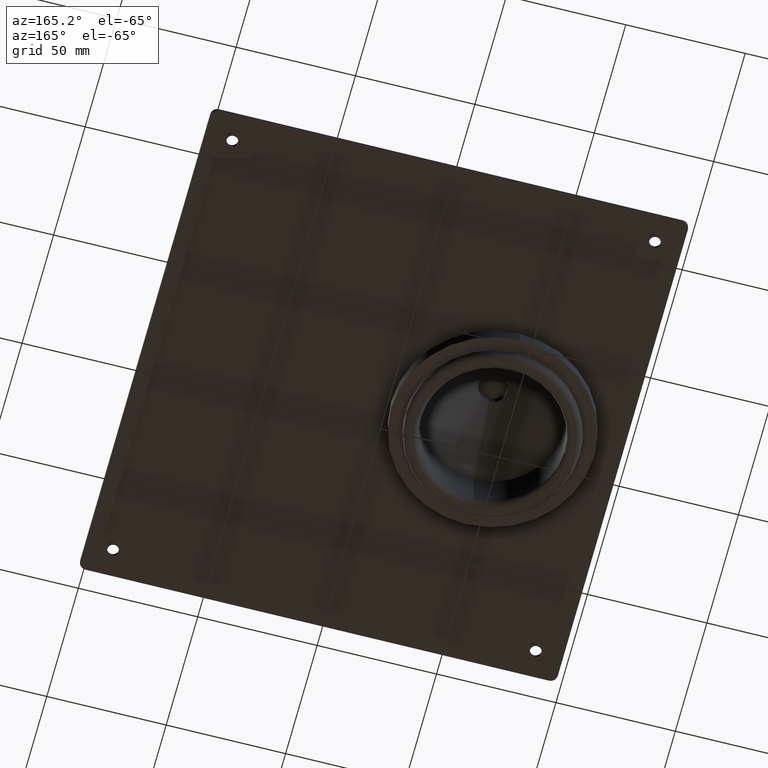
[diagram: clean part render]
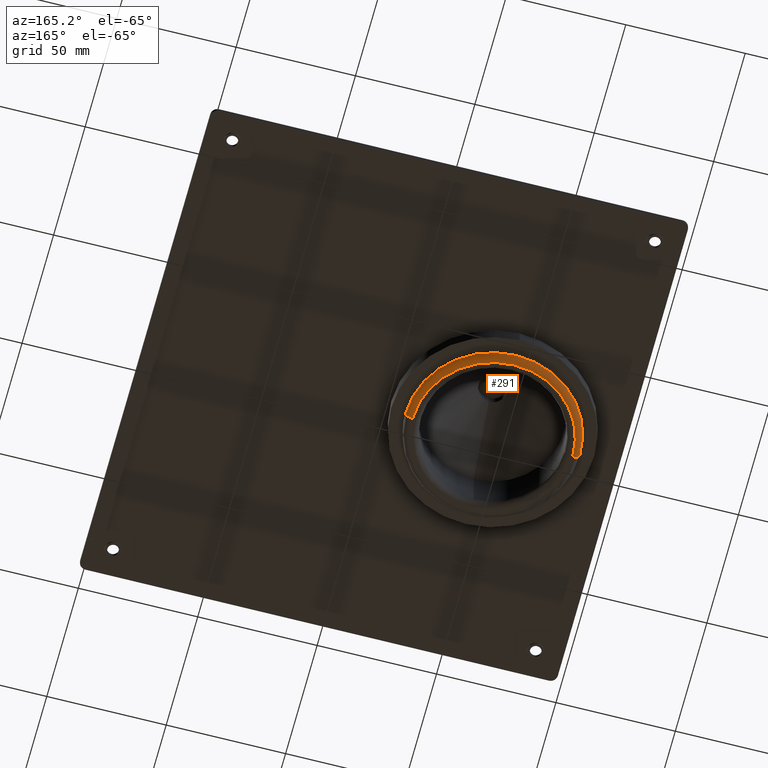
[diagram: same view with one face highlighted and labeled with its STEP entity id]
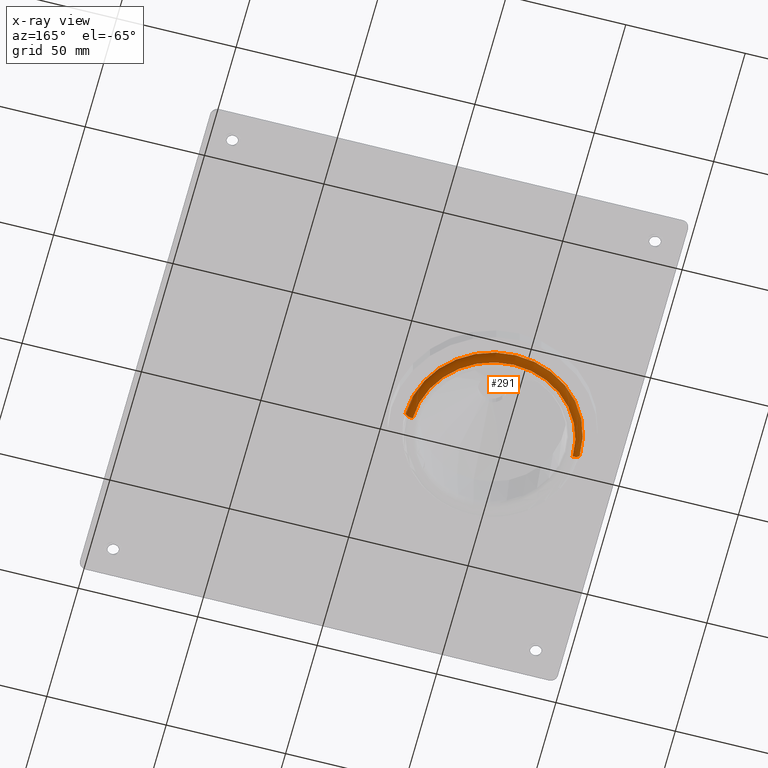
[diagram: x-ray of the same camera — body ghosted, the highlighted face saturated]
A machine part, auxiliary view. The second image highlights one B-rep face of the part: STEP entity #291.
The next image is the same camera in x-ray: the body ghosted, the highlighted face saturated — about 0% of this face is hidden behind the body in this view.
In plain terms, the highlighted toroidal blend (fillet) surface has major radius 33.5 mm and minor (blend) radius 3 mm.
Its self-contained STEP definition (entity closure, byte-faithful):
#291=ADVANCED_FACE('',(#578),#579,.T.);
#578=FACE_OUTER_BOUND('',#864,.T.);
#579=TOROIDAL_SURFACE('',#865,33.5000000001,2.99999999990001);
#864=EDGE_LOOP('',(#1492,#1493,#1494,#1495,#1496,#1497));
#865=AXIS2_PLACEMENT_3D('',#1498,#1499,#1500);
#1492=ORIENTED_EDGE('',*,*,#1805,.T.);
#1493=ORIENTED_EDGE('',*,*,#1800,.F.);
#1494=ORIENTED_EDGE('',*,*,#1863,.F.);
#1495=ORIENTED_EDGE('',*,*,#1807,.T.);
#1496=ORIENTED_EDGE('',*,*,#1861,.T.);
#1497=ORIENTED_EDGE('',*,*,#1860,.T.);
#1498=CARTESIAN_POINT('',(54.5,106.0,2.9999999999));
#1499=DIRECTION('',(0.0,0.0,1.0));
#1500=DIRECTION('',(-1.0,0.0,0.0));
#1800=EDGE_CURVE('',#2161,#2164,#2165,.T.);
#1805=EDGE_CURVE('',#2172,#2164,#2173,.T.);
#1807=EDGE_CURVE('',#2176,#2174,#2177,.T.);
#1860=EDGE_CURVE('',#2251,#2172,#2252,.T.);
#1861=EDGE_CURVE('',#2174,#2251,#2253,.T.);
#1863=EDGE_CURVE('',#2176,#2161,#2255,.T.);
#2161=VERTEX_POINT('',#2601);
#2164=VERTEX_POINT('',#2605);
#2165=CIRCLE('',#2606,36.5);
#2172=VERTEX_POINT('',#2614);
#2173=CIRCLE('',#2615,2.99999999990001);
#2174=VERTEX_POINT('',#2616);
#2176=VERTEX_POINT('',#2618);
#2177=CIRCLE('',#2619,2.99999999990001);
#2251=VERTEX_POINT('',#2703);
#2252=CIRCLE('',#2704,33.5);
#2253=CIRCLE('',#2705,33.5);
#2255=CIRCLE('',#2707,36.5);
#2601=CARTESIAN_POINT('',(54.5,142.5,3.00000000003614));
#2605=CARTESIAN_POINT('',(18.0,106.0,3.00000000003614));
#2606=AXIS2_PLACEMENT_3D('',#3021,#3022,#3023);
#2614=CARTESIAN_POINT('',(21.0,106.0,0.0));
#2615=AXIS2_PLACEMENT_3D('',#3031,#3032,#3033);
#2616=CARTESIAN_POINT('',(88.0,106.0,0.0));
#2618=CARTESIAN_POINT('',(91.0,106.0,3.00000000003614));
#2619=AXIS2_PLACEMENT_3D('',#3037,#3038,#3039);
#2703=CARTESIAN_POINT('',(54.5,139.5,0.0));
#2704=AXIS2_PLACEMENT_3D('',#3125,#3126,#3127);
#2705=AXIS2_PLACEMENT_3D('',#3128,#3129,#3130);
#2707=AXIS2_PLACEMENT_3D('',#3131,#3132,#3133);
#3021=CARTESIAN_POINT('',(54.5,106.0,3.00000000003614));
#3022=DIRECTION('',(0.0,-0.0,1.0));
#3023=DIRECTION('',(0.0,1.0,0.0));
#3031=CARTESIAN_POINT('',(20.9999999999,106.0,2.9999999999));
#3032=DIRECTION('',(-0.0,1.0,0.0));
#3033=DIRECTION('',(-1.0,-0.0,0.0));
#3037=CARTESIAN_POINT('',(88.0000000001,106.0,2.9999999999));
#3038=DIRECTION('',(-0.0,1.0,0.0));
#3039=DIRECTION('',(1.0,0.0,0.0));
#3125=CARTESIAN_POINT('',(54.5,106.0,0.0));
#3126=DIRECTION('',(0.0,-0.0,1.0));
#3127=DIRECTION('',(0.0,1.0,0.0));
#3128=CARTESIAN_POINT('',(54.5,106.0,0.0));
#3129=DIRECTION('',(0.0,-0.0,1.0));
#3130=DIRECTION('',(0.0,1.0,0.0));
#3131=CARTESIAN_POINT('',(54.5,106.0,3.00000000003614));
#3132=DIRECTION('',(0.0,-0.0,1.0));
#3133=DIRECTION('',(0.0,1.0,0.0));